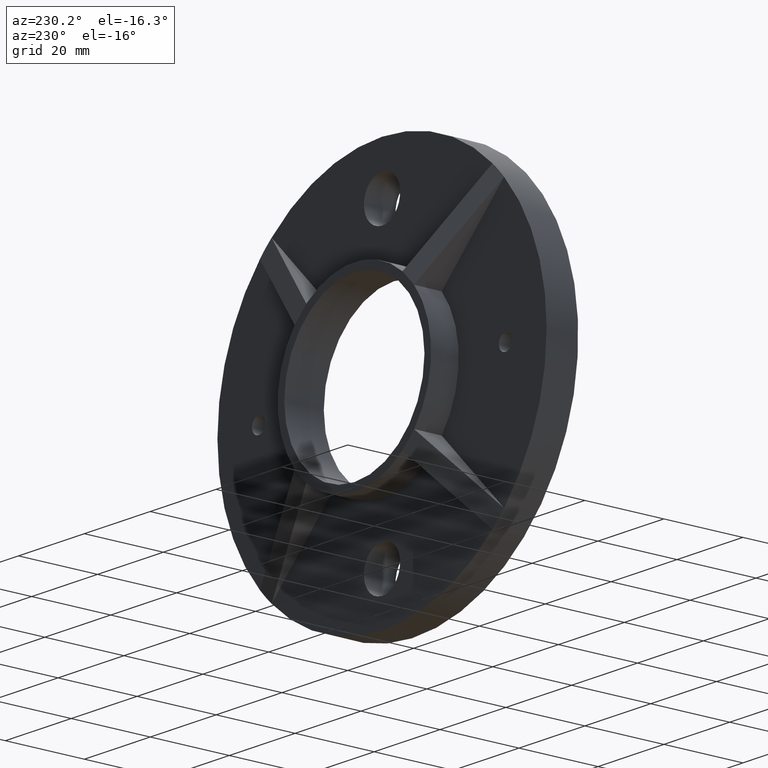
[diagram: clean part render]
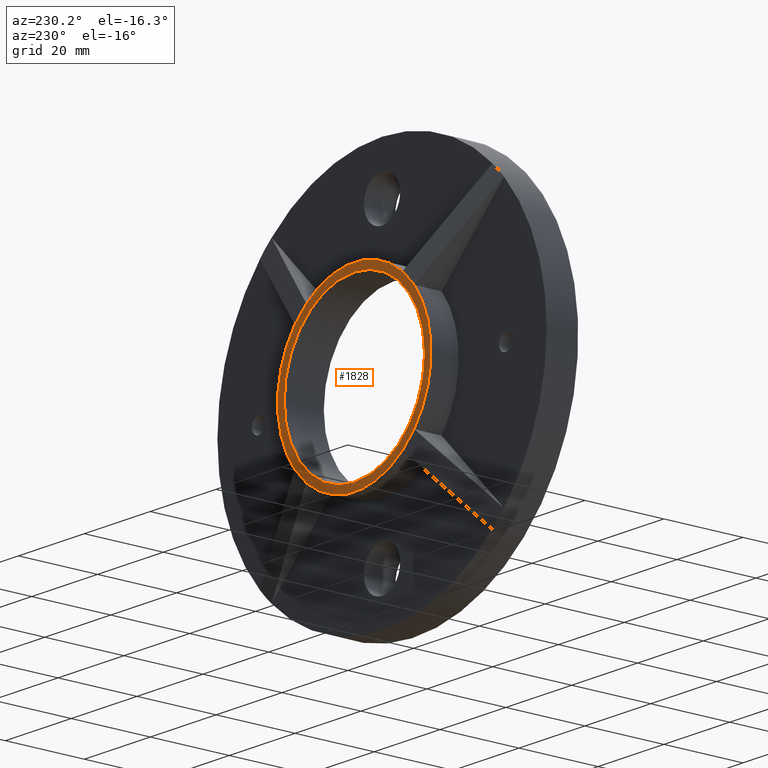
[diagram: same view with one face highlighted and labeled with its STEP entity id]
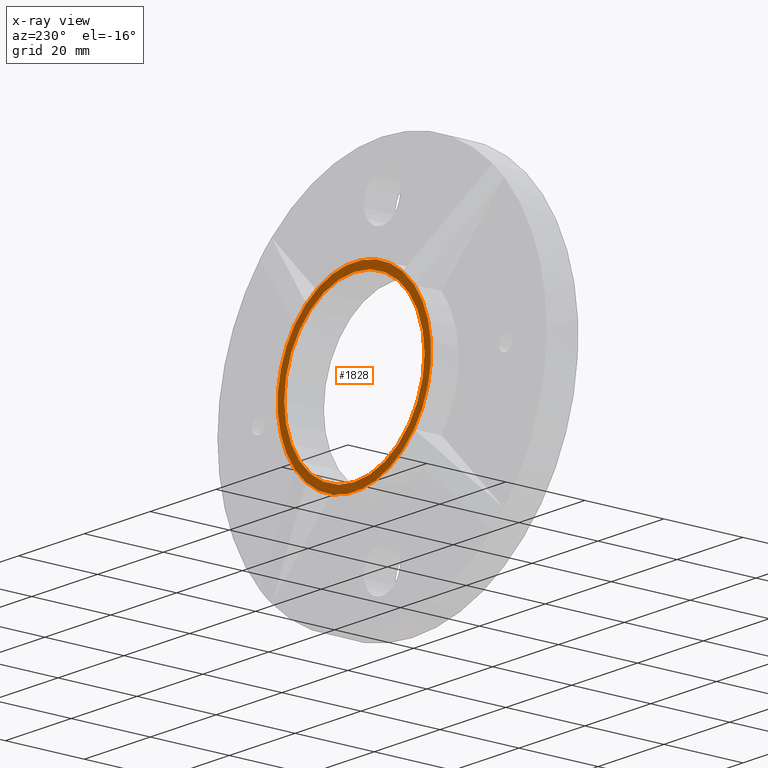
[diagram: x-ray of the same camera — body ghosted, the highlighted face saturated]
A machine part, auxiliary view. The second image highlights one B-rep face of the part: STEP entity #1828.
The next image is the same camera in x-ray: the body ghosted, the highlighted face saturated — about 0% of this face is hidden behind the body in this view.
In plain terms, the highlighted planar face has unit normal (0, 1, 0).
Its self-contained STEP definition (entity closure, byte-faithful):
#303 = DIRECTION ( 'NONE',  ( 0.000000000000000000, -0.000000000000000000, 1.000000000000000000 ) ) ;
#327 = EDGE_CURVE ( 'NONE', #8926, #1936, #3028, .T. ) ;
#495 = ORIENTED_EDGE ( 'NONE', *, *, #6820, .F. ) ;
#656 = DIRECTION ( 'NONE',  ( 0.7071067811865489050, -0.000000000000000000, -0.7071067811865462405 ) ) ;
#842 = DIRECTION ( 'NONE',  ( 0.000000000000000000, 1.000000000000000000, 0.000000000000000000 ) ) ;
#1013 = VECTOR ( 'NONE', #3135, 999.9999999999998863 ) ;
#1016 = CARTESIAN_POINT ( 'NONE',  ( -18.14824313652096421, 14.99999999999999822, -14.61270923058826554 ) ) ;
#1035 = VECTOR ( 'NONE', #3069, 1000.000000000000000 ) ;
#1059 = DIRECTION ( 'NONE',  ( 0.000000000000000000, 0.000000000000000000, 1.000000000000000000 ) ) ;
#1119 = AXIS2_PLACEMENT_3D ( 'NONE', #7557, #2048, #303 ) ;
#1290 = DIRECTION ( 'NONE',  ( 0.000000000000000000, 1.000000000000000000, 0.000000000000000000 ) ) ;
#1315 = VECTOR ( 'NONE', #3850, 1000.000000000000000 ) ;
#1325 = ORIENTED_EDGE ( 'NONE', *, *, #327, .F. ) ;
#1340 = VERTEX_POINT ( 'NONE', #11193 ) ;
#1464 = CARTESIAN_POINT ( 'NONE',  ( 0.000000000000000000, 15.00000000000000000, 21.30000000000000071 ) ) ;
#1828 = ADVANCED_FACE ( 'NONE', ( #2557, #1980 ), #3974, .T. ) ;
#1936 = VERTEX_POINT ( 'NONE', #5037 ) ;
#1965 = ORIENTED_EDGE ( 'NONE', *, *, #6895, .F. ) ;
#1980 = FACE_BOUND ( 'NONE', #7696, .T. ) ;
#2003 = CARTESIAN_POINT ( 'NONE',  ( 18.14824313652096066, 15.00000000000000000, 14.61270923058827620 ) ) ;
#2048 = DIRECTION ( 'NONE',  ( 0.000000000000000000, 1.000000000000000000, 0.000000000000000000 ) ) ;
#2323 = VECTOR ( 'NONE', #656, 1000.000000000000000 ) ;
#2557 = FACE_OUTER_BOUND ( 'NONE', #7817, .T. ) ;
#2670 = DIRECTION ( 'NONE',  ( 0.000000000000000000, 0.000000000000000000, 1.000000000000000000 ) ) ;
#2877 = CIRCLE ( 'NONE', #3725, 23.30000000000000071 ) ;
#2916 = VERTEX_POINT ( 'NONE', #9363 ) ;
#3028 = LINE ( 'NONE', #9794, #2323 ) ;
#3069 = DIRECTION ( 'NONE',  ( -0.7071067811865535679, -0.000000000000000000, -0.7071067811865415775 ) ) ;
#3135 = DIRECTION ( 'NONE',  ( 0.7071067811865486830, -0.000000000000000000, 0.7071067811865464625 ) ) ;
#3235 = DIRECTION ( 'NONE',  ( 0.000000000000000000, 0.000000000000000000, 1.000000000000000000 ) ) ;
#3408 = AXIS2_PLACEMENT_3D ( 'NONE', #3846, #5712, #1059 ) ;
#3464 = LINE ( 'NONE', #8578, #1035 ) ;
#3591 = DIRECTION ( 'NONE',  ( 0.000000000000000000, 0.000000000000000000, 1.000000000000000000 ) ) ;
#3636 = ORIENTED_EDGE ( 'NONE', *, *, #5762, .T. ) ;
#3725 = AXIS2_PLACEMENT_3D ( 'NONE', #5113, #1290, #3235 ) ;
#3741 = LINE ( 'NONE', #10354, #1315 ) ;
#3743 = EDGE_CURVE ( 'NONE', #2916, #5814, #8552, .T. ) ;
#3846 = CARTESIAN_POINT ( 'NONE',  ( 0.000000000000000000, 15.00000000000000000, 0.000000000000000000 ) ) ;
#3850 = DIRECTION ( 'NONE',  ( -0.7071067811865489050, -0.000000000000000000, 0.7071067811865462405 ) ) ;
#3943 = CARTESIAN_POINT ( 'NONE',  ( -33.61952381644547927, 15.00000000000000000, -66.38047618355454915 ) ) ;
#3974 = PLANE ( 'NONE',  #1119 ) ;
#4853 = EDGE_CURVE ( 'NONE', #8926, #10232, #8696, .T. ) ;
#5037 = CARTESIAN_POINT ( 'NONE',  ( -14.61270923058822113, 15.00000000000000000, -18.14824313652099974 ) ) ;
#5113 = CARTESIAN_POINT ( 'NONE',  ( 0.000000000000000000, 15.00000000000000000, 0.000000000000000000 ) ) ;
#5247 = ORIENTED_EDGE ( 'NONE', *, *, #6983, .T. ) ;
#5418 = CARTESIAN_POINT ( 'NONE',  ( 0.000000000000000000, 15.00000000000000000, 0.000000000000000000 ) ) ;
#5419 = CARTESIAN_POINT ( 'NONE',  ( 0.000000000000000000, 15.00000000000000000, 0.000000000000000000 ) ) ;
#5712 = DIRECTION ( 'NONE',  ( 0.000000000000000000, 1.000000000000000000, 0.000000000000000000 ) ) ;
#5762 = EDGE_CURVE ( 'NONE', #7334, #1340, #10377, .T. ) ;
#5814 = VERTEX_POINT ( 'NONE', #8535 ) ;
#5893 = LINE ( 'NONE', #3943, #1013 ) ;
#6025 = CARTESIAN_POINT ( 'NONE',  ( -18.14824313652100329, 15.00000000000000000, 14.61270923058822113 ) ) ;
#6725 = DIRECTION ( 'NONE',  ( 0.000000000000000000, 0.000000000000000000, 1.000000000000000000 ) ) ;
#6820 = EDGE_CURVE ( 'NONE', #7334, #5814, #3741, .T. ) ;
#6895 = EDGE_CURVE ( 'NONE', #2916, #10232, #3464, .T. ) ;
#6983 = EDGE_CURVE ( 'NONE', #10324, #1936, #2877, .T. ) ;
#7334 = VERTEX_POINT ( 'NONE', #2003 ) ;
#7557 = CARTESIAN_POINT ( 'NONE',  ( 0.000000000000000000, 15.00000000000000000, 0.000000000000000000 ) ) ;
#7696 = EDGE_LOOP ( 'NONE', ( #7912 ) ) ;
#7817 = EDGE_LOOP ( 'NONE', ( #1965, #10313, #495, #3636, #8468, #5247, #1325, #9336 ) ) ;
#7912 = ORIENTED_EDGE ( 'NONE', *, *, #8933, .F. ) ;
#8468 = ORIENTED_EDGE ( 'NONE', *, *, #9486, .F. ) ;
#8535 = CARTESIAN_POINT ( 'NONE',  ( 14.61270923058821936, 15.00000000000000000, 18.14824313652100329 ) ) ;
#8552 = CIRCLE ( 'NONE', #11299, 23.30000000000000071 ) ;
#8578 = CARTESIAN_POINT ( 'NONE',  ( 33.61952381644594823, 15.00000000000000000, 66.38047618355433599 ) ) ;
#8619 = CARTESIAN_POINT ( 'NONE',  ( 0.000000000000000000, 15.00000000000000000, 0.000000000000000000 ) ) ;
#8696 = CIRCLE ( 'NONE', #11224, 23.30000000000000071 ) ;
#8854 = CARTESIAN_POINT ( 'NONE',  ( 14.61270923058825844, 14.99999999999999645, -18.14824313652095711 ) ) ;
#8926 = VERTEX_POINT ( 'NONE', #1016 ) ;
#8933 = EDGE_CURVE ( 'NONE', #9313, #9313, #10419, .T. ) ;
#9313 = VERTEX_POINT ( 'NONE', #1464 ) ;
#9336 = ORIENTED_EDGE ( 'NONE', *, *, #4853, .T. ) ;
#9363 = CARTESIAN_POINT ( 'NONE',  ( -14.61270923058825311, 15.00000000000000000, 18.14824313652095000 ) ) ;
#9486 = EDGE_CURVE ( 'NONE', #10324, #1340, #5893, .T. ) ;
#9794 = CARTESIAN_POINT ( 'NONE',  ( -66.38047618355467705, 15.00000000000000000, 33.61952381644525900 ) ) ;
#10080 = DIRECTION ( 'NONE',  ( 0.000000000000000000, 1.000000000000000000, 0.000000000000000000 ) ) ;
#10185 = AXIS2_PLACEMENT_3D ( 'NONE', #8619, #10390, #6725 ) ;
#10232 = VERTEX_POINT ( 'NONE', #6025 ) ;
#10313 = ORIENTED_EDGE ( 'NONE', *, *, #3743, .T. ) ;
#10324 = VERTEX_POINT ( 'NONE', #8854 ) ;
#10354 = CARTESIAN_POINT ( 'NONE',  ( 66.38047618355467705, 15.00000000000000000, -33.61952381644525900 ) ) ;
#10377 = CIRCLE ( 'NONE', #3408, 23.30000000000000071 ) ;
#10390 = DIRECTION ( 'NONE',  ( 0.000000000000000000, 1.000000000000000000, 0.000000000000000000 ) ) ;
#10419 = CIRCLE ( 'NONE', #10185, 21.30000000000000071 ) ;
#11193 = CARTESIAN_POINT ( 'NONE',  ( 18.14824313652099974, 15.00000000000000000, -14.61270923058822291 ) ) ;
#11224 = AXIS2_PLACEMENT_3D ( 'NONE', #5419, #10080, #3591 ) ;
#11299 = AXIS2_PLACEMENT_3D ( 'NONE', #5418, #842, #2670 ) ;